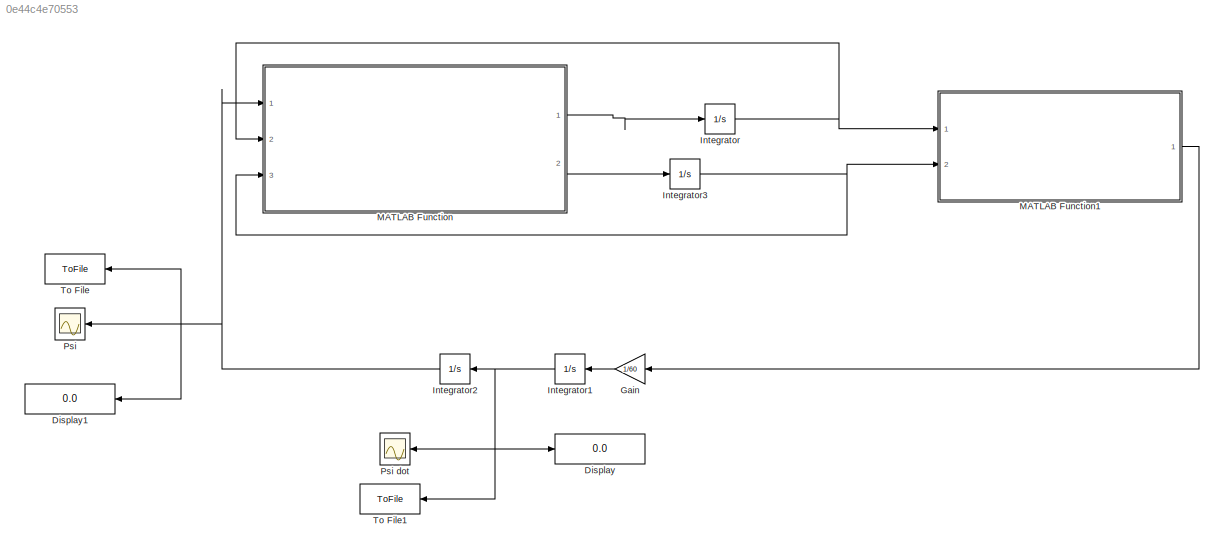
MODEL slx_0e44c4e70553
KIND model
CONFIG AbsTol = auto
CONFIG EnableMultiTasking = off
CONFIG FixedStep = auto
CONFIG MaxStep = auto
CONFIG MinStep = auto
CONFIG RelTol = 1e-3
CONFIG SampleTimeConstraint = Unconstrained
CONFIG Solver = VariableStepAuto
CONFIG SolverName = VariableStepAuto
CONFIG StartTime = 0.0
CONFIG StopTime = 500
BLOCK [Display] Display
  Decimation = 1
  Ports = [1]
BLOCK [Display] Display1
  Decimation = 1
  Ports = [1]
BLOCK [Gain] Gain
  Gain = 1/60
BLOCK [Integrator] Integrator
  Ports = [1, 1]
BLOCK [Integrator] Integrator1
  InitialCondition = 0.1
  Ports = [1, 1]
BLOCK [Integrator] Integrator2
  Ports = [1, 1]
BLOCK [Integrator] Integrator3
  Ports = [1, 1]
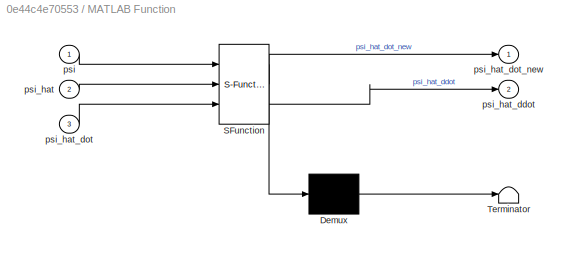
BLOCK [SubSystem] MATLAB Function
  ErrorFcn = Stateflow.Translate.translate
  PermitHierarchicalResolution = ExplicitOnly
  Ports = [3, 2]
  RequestExecContextInheritance = off
  SFBlockType = MATLAB Function
  TreatAsAtomicUnit = on
BLOCK [Demux] MATLAB Function/ Demux 
  Outputs = 1
  Ports = [1, 1]
BLOCK [S-Function] MATLAB Function/ SFunction 
  EnableBusSupport = on
  FunctionName = sf_sfun
  PortCounts = [3 3]
  Ports = [3, 3]
  SFcnIsStateOwnerBlock = off
  SFunctionDeploymentMode = off
  Tag = Stateflow S-Function 2
BLOCK [Terminator] MATLAB Function/ Terminator 
BLOCK [Inport] MATLAB Function/psi
BLOCK [Inport] MATLAB Function/psi_hat
  Port = 2
BLOCK [Outport] MATLAB Function/psi_hat_ddot
  Port = 2
BLOCK [Inport] MATLAB Function/psi_hat_dot
  Port = 3
BLOCK [Outport] MATLAB Function/psi_hat_dot_new
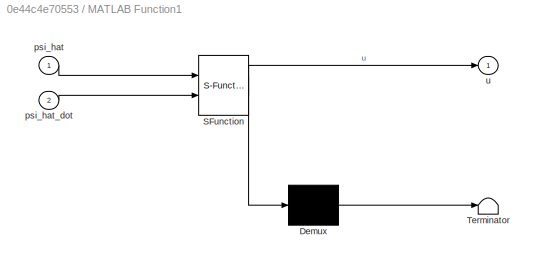
BLOCK [SubSystem] MATLAB Function1
  ErrorFcn = Stateflow.Translate.translate
  PermitHierarchicalResolution = ExplicitOnly
  Ports = [2, 1]
  RequestExecContextInheritance = off
  SFBlockType = MATLAB Function
  TreatAsAtomicUnit = on
BLOCK [Demux] MATLAB Function1/ Demux 
  Outputs = 1
  Ports = [1, 1]
BLOCK [S-Function] MATLAB Function1/ SFunction 
  EnableBusSupport = on
  FunctionName = sf_sfun
  PortCounts = [2 2]
  Ports = [2, 2]
  SFcnIsStateOwnerBlock = off
  SFunctionDeploymentMode = off
  Tag = Stateflow S-Function 1
BLOCK [Terminator] MATLAB Function1/ Terminator 
BLOCK [Inport] MATLAB Function1/psi_hat
BLOCK [Inport] MATLAB Function1/psi_hat_dot
  Port = 2
BLOCK [Outport] MATLAB Function1/u
BLOCK [Scope] Psi
  Floating = off
  NumInputPorts = 1
  Ports = [1]
  ScopeSpecificationString = Simulink.scopes.TimeScopeBlockCfg('CurrentConfiguration', extmgr.ConfigurationSet(extmgr.Configuration('Core','General UI',true),extmgr.Configuration('Core','Source UI',true),extmgr.Configuration('Sources','WiredSimulink',true),extmgr.Configuration('Visuals','Time Domain',true,'SerializedDisplays',{struct('MinYLimReal','-0.57633','MaxYLimReal','0.79609','YLabelReal','','MinYLimMag','0.00000','MaxY...<+1358ch>
BLOCK [Scope] Psi dot
  Floating = off
  NumInputPorts = 1
  Ports = [1]
  ScopeSpecificationString = Simulink.scopes.TimeScopeBlockCfg('CurrentConfiguration', extmgr.ConfigurationSet(extmgr.Configuration('Core','General UI',true),extmgr.Configuration('Core','Source UI',true),extmgr.Configuration('Sources','WiredSimulink',true,'DataLoggingVariableName','ScopeData1'),extmgr.Configuration('Visuals','Time Domain',true,'SerializedDisplays',{struct('MinYLimReal','-0.09061','MaxYLimReal','0.12118','YLab...<+1425ch>
BLOCK [ToFile] To File
  Filename = psi.mat
  MatrixName = psi
  Ports = [1]
BLOCK [ToFile] To File1
  Filename = psi_dot.mat
  MatrixName = psi_dot
  Ports = [1]
LINE Gain:1 -> Integrator1:1
NET Integrator1:1 -> Display:1, Integrator2:1, Psi dot:1, To File1:1
NET Integrator2:1 -> Display1:1, MATLAB Function:1, Psi:1, To File:1
NET Integrator3:1 -> MATLAB Function1:2, MATLAB Function:3
NET Integrator:1 -> MATLAB Function1:1, MATLAB Function:2
LINE MATLAB Function1:1 -> Gain:1
LINE MATLAB Function:1 -> Integrator:1
LINE MATLAB Function:2 -> Integrator3:1
note: NET lines group one-source signal fan-out (src -> all destinations, sorted); 1:1 wires keep LINE
CHART MATLAB Function1 states=1 transitions=1
  STATE_LABEL 'eML_blk_kernel()'
  STATE_LABEL 'SCRIPT:\nfunction u = the_u(psi_hat, psi_hat_dot)\nK_p = 60;\nK_d = 60;\nu = -K_p*psi_hat - K_d*psi_hat_dot;\n\nend\n'
CHART MATLAB Function states=1 transitions=1
  STATE_LABEL 'eML_blk_kernel()'
  STATE_LABEL 'SCRIPT:\nfunction [psi_hat_dot_new, psi_hat_ddot]= ten(psi, psi_hat, psi_hat_dot)\nK_p = 60;\nK_d = 60;\nL1 = 50;\nL2 = 50;\ntemp = [0, 1; -K_p, -K_d]*[psi_hat; psi_hat_dot]+[L1; L2]*(psi-psi_hat);\npsi_hat_dot_new = temp(1);\npsi_hat_ddot = temp(2);\nend\n\n\n'
CHART  states=0 transitions=0
CHART  states=0 transitions=0
